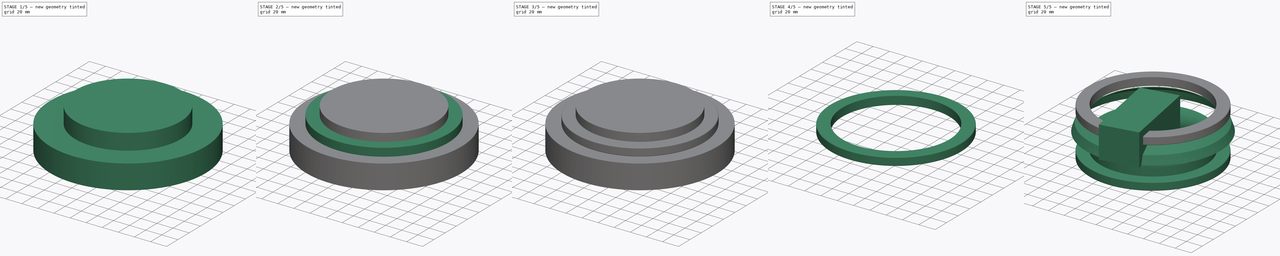
[diagram: build sequence overview — one tinted view per stage of 5, left to right]
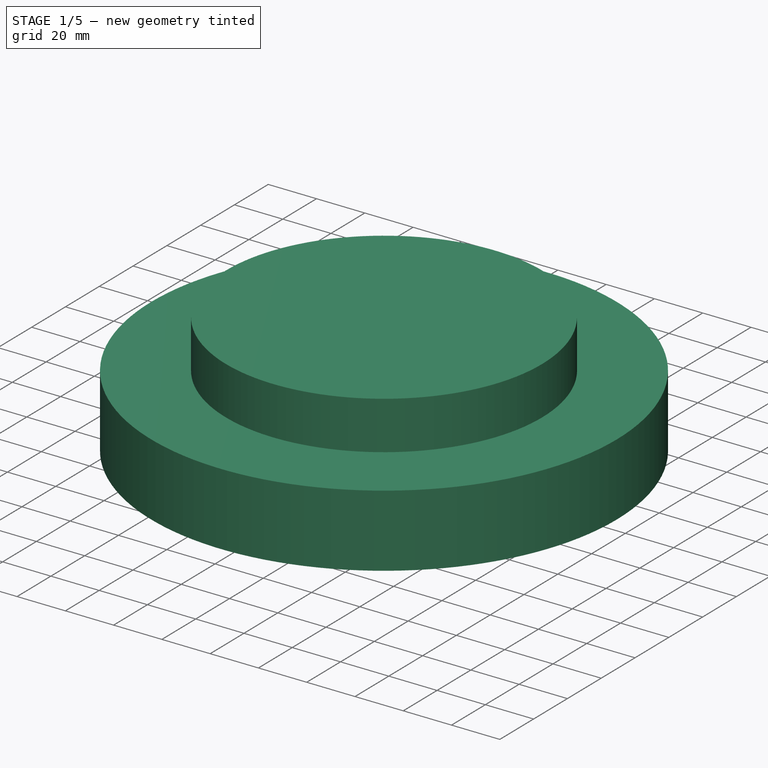
[diagram: stage 1 of 5 — iso view after this stage's code; geometry added in this stage tinted green]
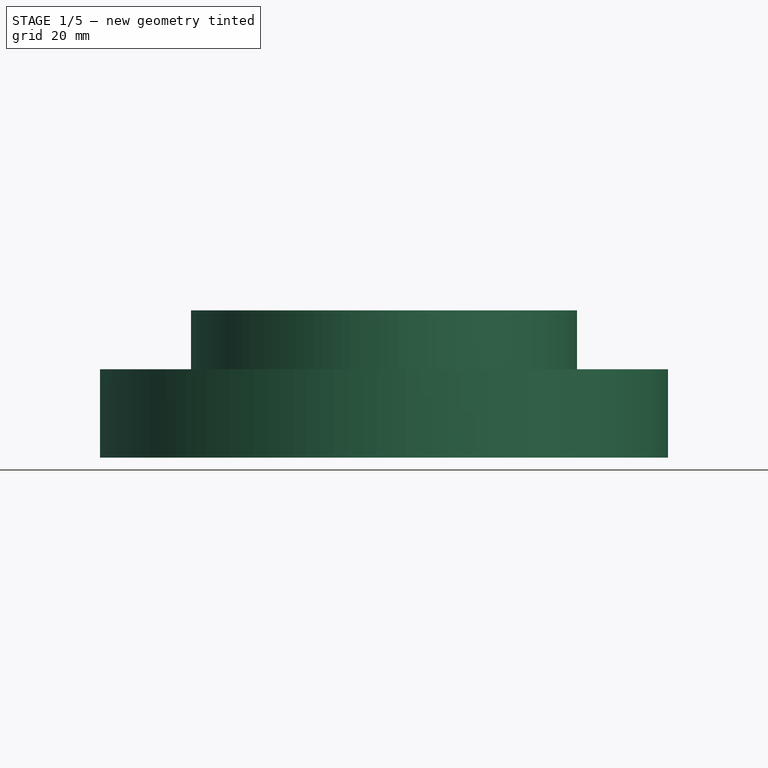
[diagram: stage 1 of 5 — front view after this stage's code; geometry added in this stage tinted green]
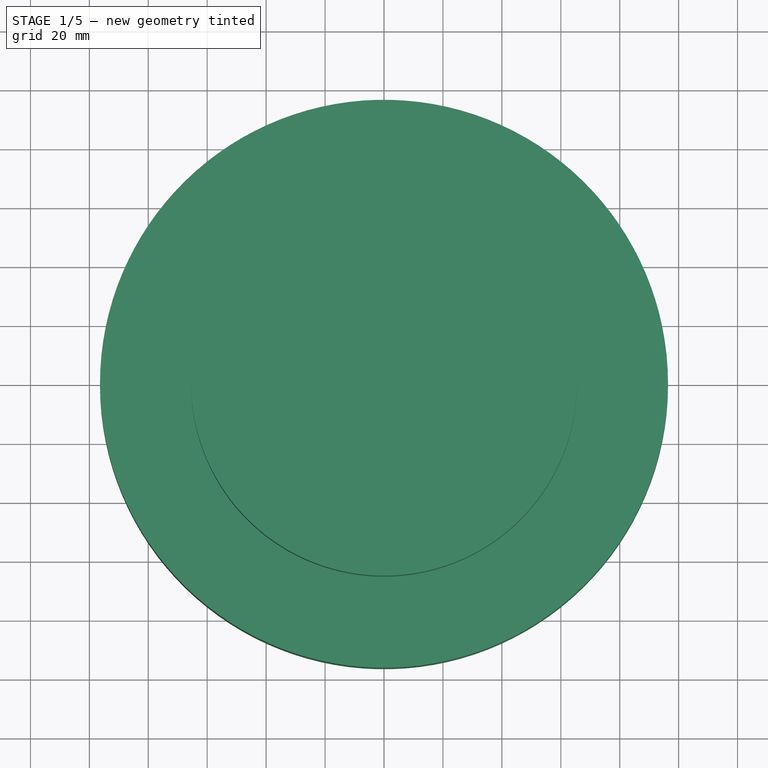
[diagram: stage 1 of 5 — top view after this stage's code; geometry added in this stage tinted green]
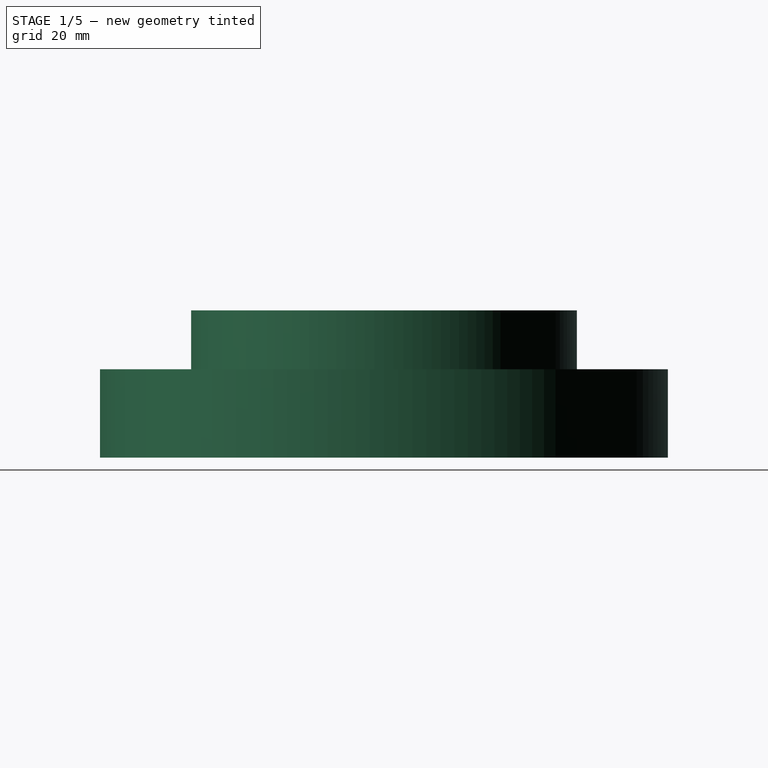
[diagram: stage 1 of 5 — right view after this stage's code; geometry added in this stage tinted green]
FCSTD DOCUMENT  (FreeCAD 0.20R27319 (Git))
Label: Hinterrad
License: All rights reserved
LicenseURL: http://en.wikipedia.org/wiki/All_rights_reserved
objects: Sketcher::SketchObject×6, PartDesign::Body×5, Part::FeaturePython×4, PartDesign::Revolution×3, PartDesign::Pad×3, Part::MultiFuse×2, Part::Fillet×2, Part::Box×1, App::DocumentObjectGroup×1
note: 31 computed .brp shape members not serialized (recipe doc carries the construction recipe); baked Part::Feature solids carry a one-line shape summary decoded from their .brp

FEATURE [PartDesign::Body] Body001  label="Nabe"
  Group = -> [Revolution001]
  Origin = -> Origin001
  Tip = -> Revolution001
FEATURE [Sketcher::SketchObject] Sketch003
  AttachmentOffset = pos=(0,0,14) rot=(0,0,1;0rad)
  FullyConstrained = true
  MapMode = 5
  Placement = pos=(0,-14,-3.1e-15) rot=(1,0,0;1.5708rad)
  Support = -> [XZ_Plane003]
  sketch-geometry (6):
    g0: ArcOfCircle CenterX=0 CenterY=0 CenterZ=0 NormalX=0 NormalY=0 NormalZ=1 AngleXU=0 Radius=8 StartAngle=5.09679 EndAngle=10.6112
    g1: LineSegment StartX=1.5 StartY=-8.9162 StartZ=0 EndX=0.5 EndY=-15.5 EndZ=0
    g2: LineSegment StartX=0.5 StartY=-15.5 StartZ=0 EndX=-0.5 EndY=-15.5 EndZ=0
    g3: LineSegment StartX=-0.5 StartY=-15.5 StartZ=0 EndX=-1.5 EndY=-8.9162 EndZ=0
    g4: LineSegment StartX=-3 StartY=-7.4162 StartZ=0 EndX=-1.5 EndY=-8.9162 EndZ=0
    g5: LineSegment StartX=1.5 StartY=-8.9162 StartZ=0 EndX=3 EndY=-7.4162 EndZ=0
  constraints (16):
    c: Coincident(g0,g-1)
    c: Coincident(g1,g2)
    c: Coincident(g2,g3)
    c: Symmetric(g0,g0,g-2)
    c: Symmetric(g2,g1,g-2)
    c: DistanceY(g1) = -15.5
    c: DistanceX(g2,g2) = 1
    c: Diameter(g0) = 16
    c: Symmetric(g1,g3,g-2)
    c: DistanceX(g3,g1) = 3
    c: Coincident(g4,g0)
    c: Coincident(g4,g3)
    c: Coincident(g5,g1)
    c: Coincident(g5,g0)
    c: DistanceX(g0,g0) = 6
    c: Angle(g5) = 0.785398
FEATURE [PartDesign::Pad] Pad
  Direction = (0,-1,-2e-16)
  Length = 51
  Length2 = 100
  Placement = pos=(0,0,0) rot=(1,0,0;1.5708rad)
  Profile = -> Sketch003
  Type = 0
FEATURE [Sketcher::SketchObject] Sketch005
  AttachmentOffset = pos=(0,0,5.5) rot=(0,0,1;0rad)
  FullyConstrained = false
  MapMode = 5
  Placement = pos=(0,0,5.5) rot=(0,0,1;0rad)
  Support = -> [XY_Plane004]
  sketch-geometry (1):
    g0: Circle CenterX=0 CenterY=0 CenterZ=0 NormalX=0 NormalY=0 NormalZ=1 AngleXU=0 Radius=96.3947
  constraints (1):
    c: Coincident(g0,g-1)
FEATURE [PartDesign::Pad] Pad001
  Direction = (0,0,1)
  Length = 30
  Length2 = 10
  Profile = -> Sketch005
  ReferenceAxis = -> Sketch005 [N_Axis]
  Reversed = true
  Type = 0
FEATURE [Sketcher::SketchObject] Sketch006
  FullyConstrained = true
  MapMode = 5
  Placement = pos=(0,0,5.5) rot=(0,0,1;0rad)
  Support = -> [Pad001]
  sketch-geometry (1):
    g0: Circle CenterX=0 CenterY=0 CenterZ=0 NormalX=0 NormalY=0 NormalZ=1 AngleXU=0 Radius=65.5
  constraints (2):
    c: Coincident(g0,g-1)
    c: Diameter(g0) = 131
FEATURE [PartDesign::Pad] Pad002
  BaseFeature = -> Pad001
  Direction = (0,0,1)
  Length = 20
  Length2 = 10
  Profile = -> Sketch006
  ReferenceAxis = -> Sketch006 [N_Axis]
  Type = 0
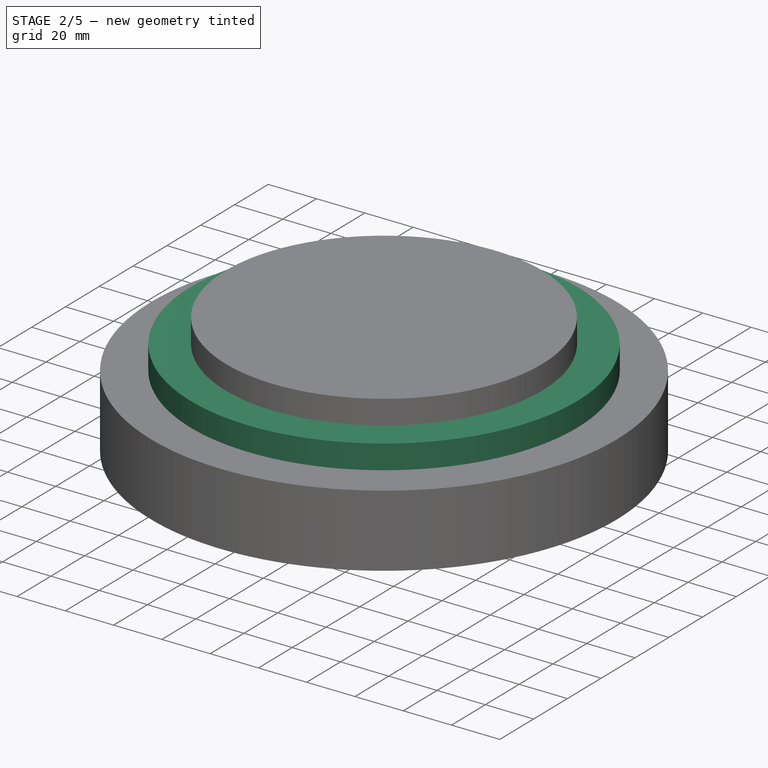
[diagram: stage 2 of 5 — iso view after this stage's code; geometry added in this stage tinted green]
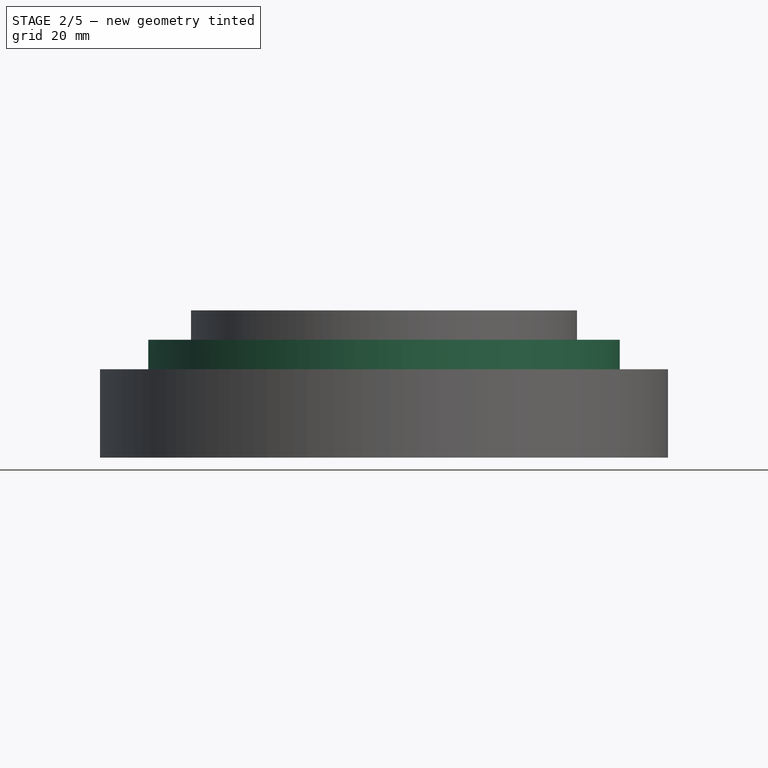
[diagram: stage 2 of 5 — front view after this stage's code; geometry added in this stage tinted green]
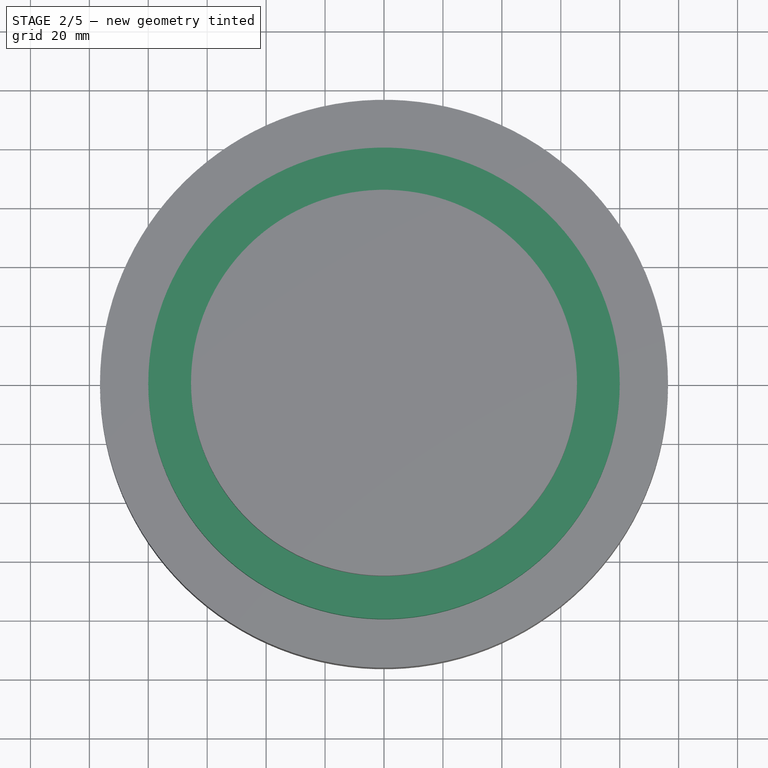
[diagram: stage 2 of 5 — top view after this stage's code; geometry added in this stage tinted green]
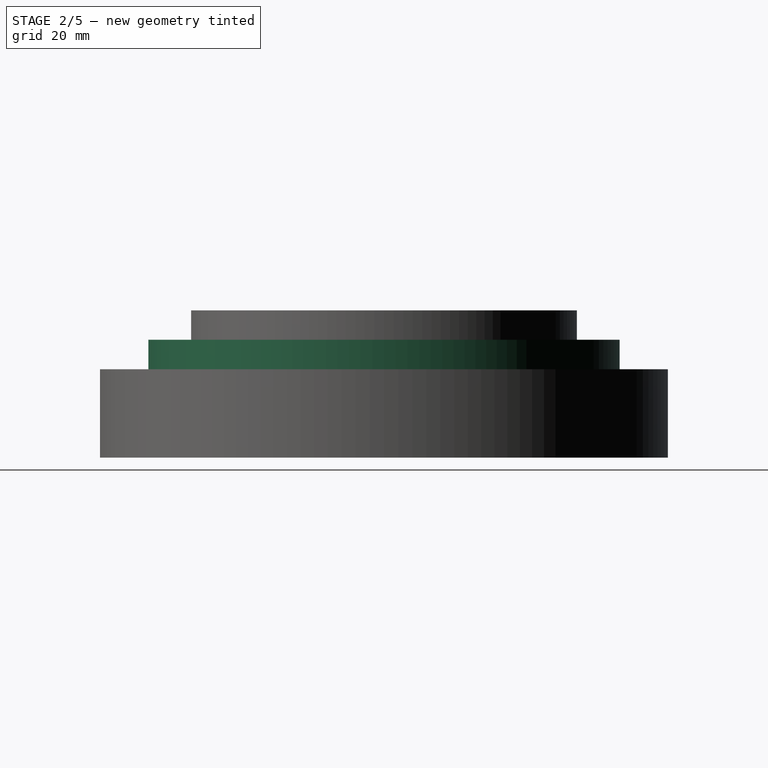
[diagram: stage 2 of 5 — right view after this stage's code; geometry added in this stage tinted green]
FEATURE [Sketcher::SketchObject] Sketch
  FullyConstrained = true
  MapMode = 5
  Placement = pos=(0,0,0) rot=(1,0,0;1.5708rad)
  Support = -> [XZ_Plane]
  sketch-geometry (9):
    g0: LineSegment StartX=-66 StartY=5.5 StartZ=0 EndX=-80 EndY=5.5 EndZ=0
    g1: LineSegment StartX=-80 StartY=5.5 StartZ=0 EndX=-80 EndY=15.5 EndZ=0
    g2: LineSegment StartX=-80 StartY=15.5 StartZ=0 EndX=-65 EndY=15.5 EndZ=0
    g3: LineSegment StartX=-65 StartY=-15.5 StartZ=0 EndX=-80 EndY=-15.5 EndZ=0
    g4: LineSegment StartX=-80 StartY=-15.5 StartZ=0 EndX=-80 EndY=-5.5 EndZ=0
    g5: LineSegment StartX=-80 StartY=-5.5 StartZ=0 EndX=-66 EndY=-5.5 EndZ=0
    g6: LineSegment StartX=-66 StartY=-5.5 StartZ=0 EndX=-66 EndY=5.5 EndZ=0
    g7: ArcOfCircle CenterX=-70 CenterY=-6e-16 CenterZ=0 NormalX=0 NormalY=0 NormalZ=1 AngleXU=0 Radius=16.2865 StartAngle=5.02443 EndAngle=7.54194
    g8: GeomPoint X=80 Y=15.5 Z=0
  constraints (24):
    c: Horizontal(g0)
    c: Coincident(g0,g1)
    c: Vertical(g1)
    c: Coincident(g1,g2)
    c: Horizontal(g2)
    c: Horizontal(g3)
    c: Coincident(g3,g4)
    c: Vertical(g4)
    c: Coincident(g4,g5)
    c: Horizontal(g5)
    c: Coincident(g5,g6)
    c: Coincident(g6,g0)
    c: Symmetric(g2,g3,g-1)
    c: Symmetric(g0,g5,g-1)
    c: PointOnObject(g4,g1)
    c: Coincident(g7,g2)
    c: Coincident(g7,g3)
    c: DistanceX(g7,g3) = 5
    c: DistanceY(g3,g1) = 31
    c: DistanceY(g4,g0) = 11
    c: DistanceX(g4,g5) = 14
    c: DistanceX(g2,g2) = 15
    c: Symmetric(g8,g1,g-2)
    c: DistanceX(g1,g8) = 160
FEATURE [PartDesign::Revolution] Revolution
  Angle = 360
  Axis = (0,-2e-16,1)
  Base = (0,0,0)
  Placement = pos=(0,0,0) rot=(1,0,0;1.5708rad)
  Profile = -> Sketch
  ReferenceAxis = -> Sketch [V_Axis]
FEATURE [PartDesign::Body] Body002  label="Speiche"
  Group = -> [Sketch003,Pad]
  Origin = -> Origin002
  Tip = -> Pad
FEATURE [Part::FeaturePython] Array  label="Speichen"  # Draft array (typed FeaturePython)
  AlwaysSyncPlacement = false
  Angle = 360
  ArrayType = 1
  Axis = (0,0,1)
  Base = -> Body002
  Center = (0,0,0)
  Count = 5
  ExpandArray = false
  Fuse = false
  IntervalAxis = (0,0,0)
  IntervalX = (50,0,0)
  IntervalY = (0,50,0)
  IntervalZ = (0,0,50)
  NumberCircles = 3
  NumberPolar = 5
  NumberX = 2
  NumberY = 2
  NumberZ = 1
  PlacementList = 5 placements: [(0,0,0),(0,0,0),(0,0,0),(0,0,0),(0,0,0)]
  RadialDistance = 50
  ScaleList = (5) [(1,1,1),(1,1,1),(1,1,1),(1,1,1),(1,1,1)]
  Symmetry = 1
  TangentialDistance = 25
FEATURE [Part::MultiFuse] Fusion
  Shapes = -> [Body,Array]
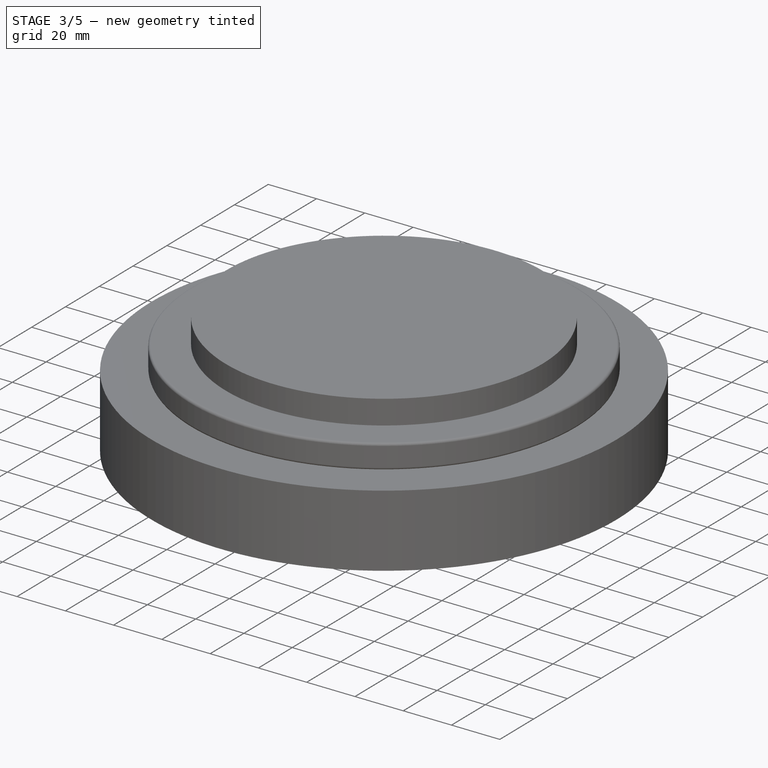
[diagram: stage 3 of 5 — iso view after this stage's code; geometry added in this stage tinted green]
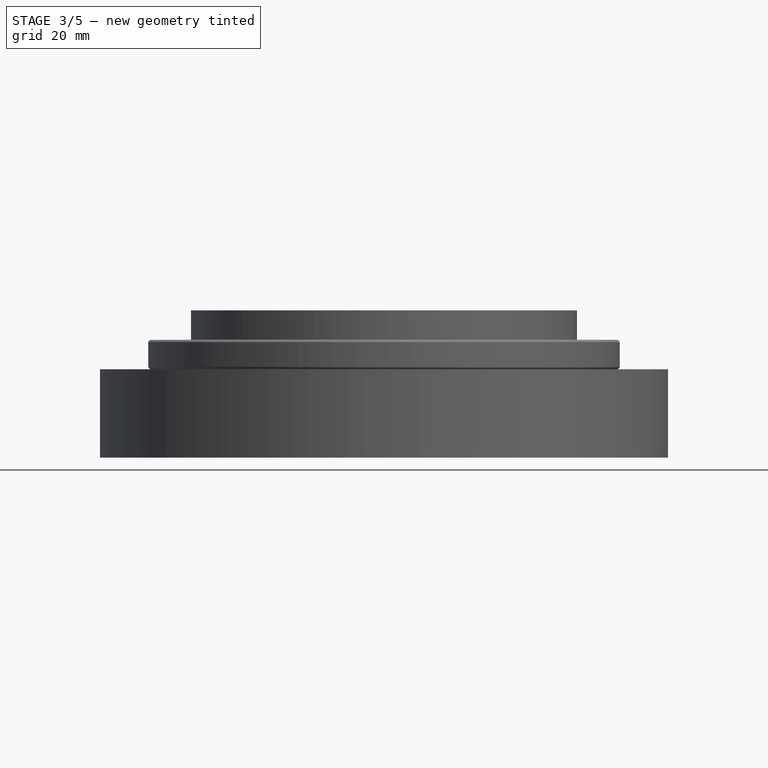
[diagram: stage 3 of 5 — front view after this stage's code; geometry added in this stage tinted green]
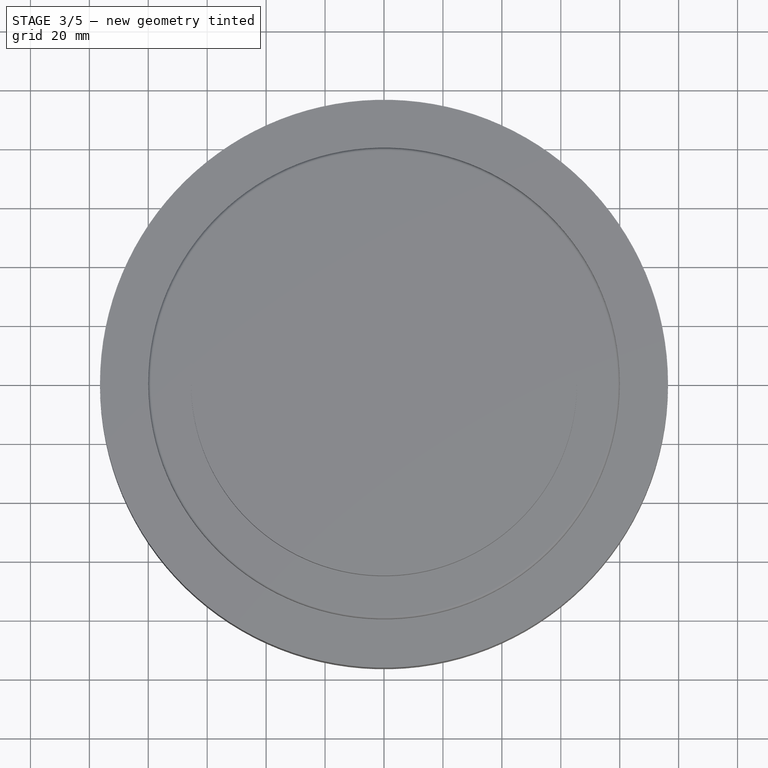
[diagram: stage 3 of 5 — top view after this stage's code; geometry added in this stage tinted green]
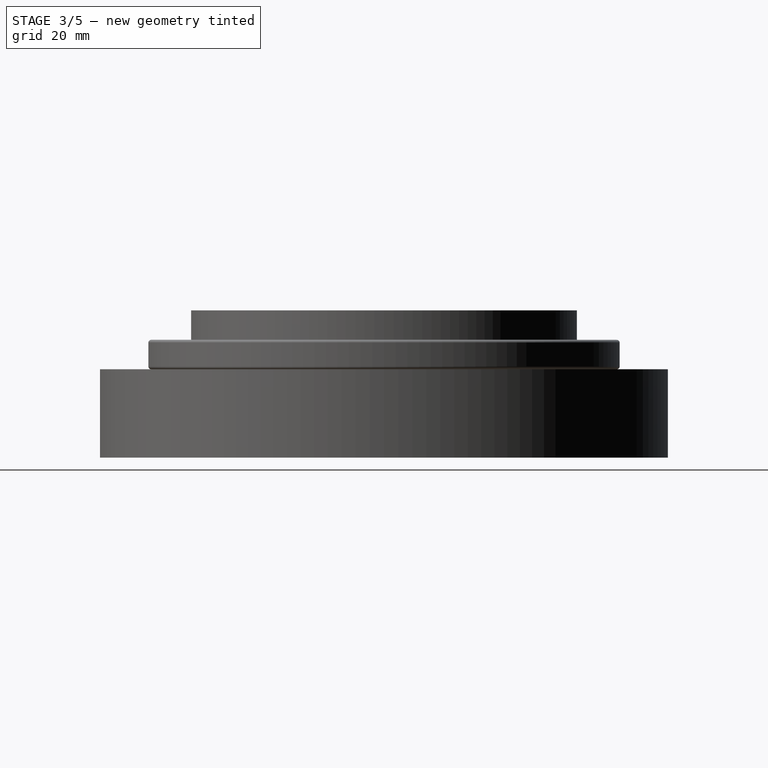
[diagram: stage 3 of 5 — right view after this stage's code; geometry added in this stage tinted green]
FEATURE [PartDesign::Body] Body  label="Felge"
  Group = -> [Sketch,Revolution]
  Origin = -> Origin
  Tip = -> Revolution
FEATURE [Sketcher::SketchObject] Sketch002
  ExternalGeometry = -> [Sketch]
  FullyConstrained = true
  MapMode = 5
  Placement = pos=(0,0,0) rot=(1,0,0;1.5708rad)
  Support = -> [XZ_Plane002]
  sketch-geometry (14):
    g0: LineSegment StartX=-11.2 StartY=-15.5 StartZ=0 EndX=-14.2 EndY=-15.5 EndZ=0
    g1: LineSegment StartX=-14.2 StartY=15.5 StartZ=0 EndX=-11.2 EndY=15.5 EndZ=0
    g2: LineSegment StartX=-11.2 StartY=15.5 StartZ=0 EndX=-11.2 EndY=8.5 EndZ=0
    g3: LineSegment StartX=-11.2 StartY=8.5 StartZ=0 EndX=-9.9 EndY=8.5 EndZ=0
    g4: LineSegment StartX=-9.9 StartY=8.5 StartZ=0 EndX=-9.9 EndY=6.5 EndZ=0
    g5: LineSegment StartX=-9.9 StartY=6.5 StartZ=0 EndX=-13.9 EndY=2.5 EndZ=0
    g6: LineSegment StartX=-13.9 StartY=2.5 StartZ=0 EndX=-13.9 EndY=-2.5 EndZ=0
    g7: LineSegment StartX=-13.9 StartY=-2.5 StartZ=0 EndX=-9.9 EndY=-6.5 EndZ=0
    g8: LineSegment StartX=-9.9 StartY=-6.5 StartZ=0 EndX=-9.9 EndY=-8.5 EndZ=0
    g9: LineSegment StartX=-9.9 StartY=-8.5 StartZ=0 EndX=-11.2 EndY=-8.5 EndZ=0
    g10: LineSegment StartX=-11.2 StartY=-8.5 StartZ=0 EndX=-11.2 EndY=-15.5 EndZ=0
    g11: ArcOfCircle CenterX=-6.2 CenterY=2e-16 CenterZ=0 NormalX=0 NormalY=0 NormalZ=1 AngleXU=0 Radius=17.4428 StartAngle=2.04726 EndAngle=4.23592
    g12: GeomPoint X=11.2 Y=-15.5 Z=0
    g13: GeomPoint X=9.9 Y=-8.5 Z=0
  constraints (38):
    c: Horizontal(g0)
    c: Horizontal(g1)
    c: Coincident(g1,g2)
    c: Coincident(g2,g3)
    c: Horizontal(g3)
    c: Coincident(g3,g4)
    c: Vertical(g4)
    c: Coincident(g4,g5)
    c: Coincident(g5,g6)
    c: Coincident(g6,g7)
    c: Coincident(g7,g8)
    c: Vertical(g8)
    c: Coincident(g8,g9)
    c: Horizontal(g9)
    c: Coincident(g9,g10)
    c: Coincident(g10,g0)
    c: Coincident(g11,g1)
    c: Coincident(g11,g0)
    c: Vertical(g2)
    c: Vertical(g10)
    c: Equal(g10,g2)
    c: Equal(g3,g9)
    c: Equal(g8,g4)
    c: Equal(g1,g0)
    c: Symmetric(g0,g1,g-1)
    c: Symmetric(g6,g5,g-1)
    c: Angle(g7) = -0.785398
    c: DistanceX(g0,g11) = 8
    c: DistanceY(g10,g10) = 7
    c: Symmetric(g8,g13,g-2)
    c: Symmetric(g12,g0,g-2)
    c: DistanceX(g0,g12) = 22.4
    c: DistanceX(g8,g13) = 19.8
    c: DistanceX(g9,g9) = 1.3
    c: DistanceY(g4,g4) = 2
    c: DistanceY(g6,g6) = 5
    c: DistanceX(g1,g1) = 3
    c: PointOnObject(g-3,g0)
FEATURE [PartDesign::Revolution] Revolution001
  Angle = 360
  Axis = (0,-2e-16,1)
  Base = (0,0,0)
  Placement = pos=(0,0,0) rot=(1,0,0;1.5708rad)
  Profile = -> Sketch002
  ReferenceAxis = -> Sketch002 [V_Axis]
FEATURE [Part::Fillet] Fillet
  Base = -> Fusion
  Edges = 9 edges: [Edge1 r=1,Edge28 r=1,Edge35 r=3,Edge41 r=3,Edge47 r=3,Edge53 r=3,Edge59 r=3,Edge73 r=1,Edge136 r=1]
FEATURE [Part::MultiFuse] Fusion001
  Shapes = -> [Fillet,Body001]
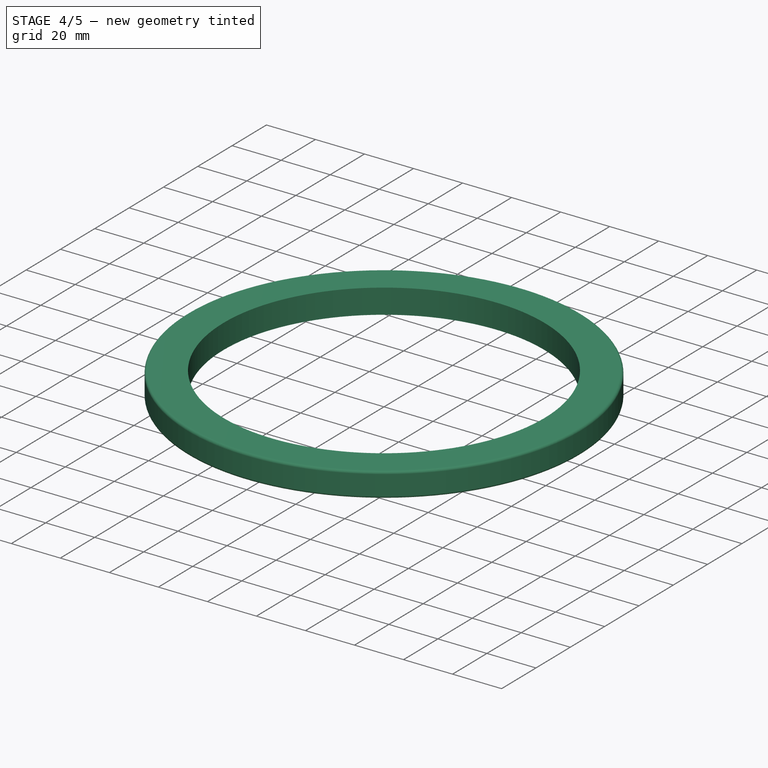
[diagram: stage 4 of 5 — iso view after this stage's code; geometry added in this stage tinted green]
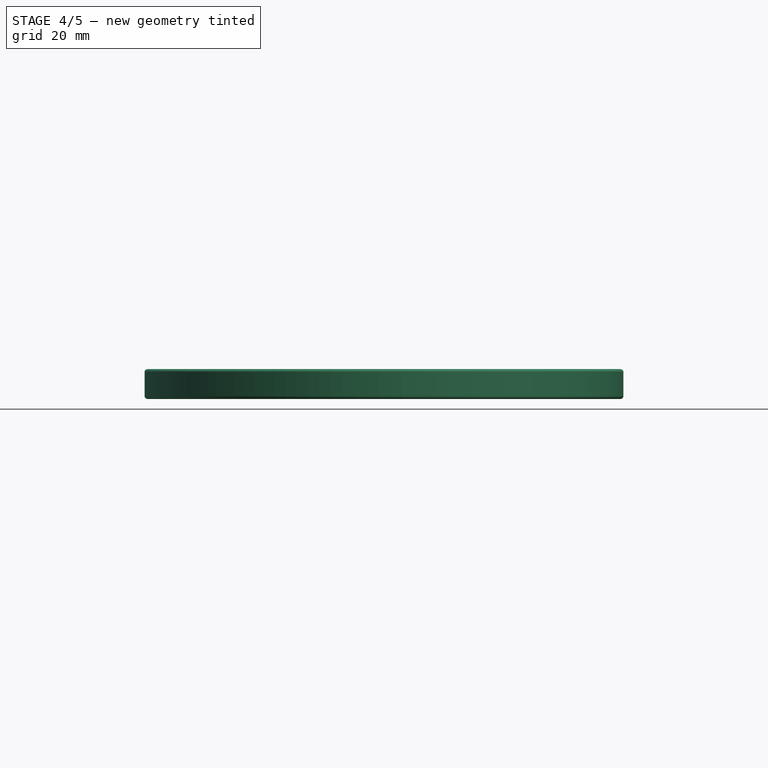
[diagram: stage 4 of 5 — front view after this stage's code; geometry added in this stage tinted green]
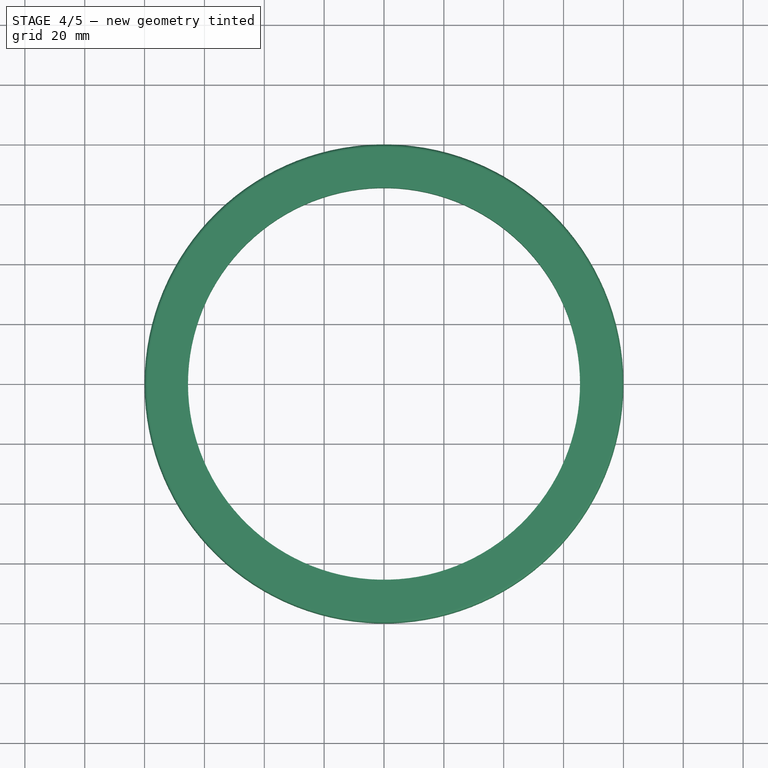
[diagram: stage 4 of 5 — top view after this stage's code; geometry added in this stage tinted green]
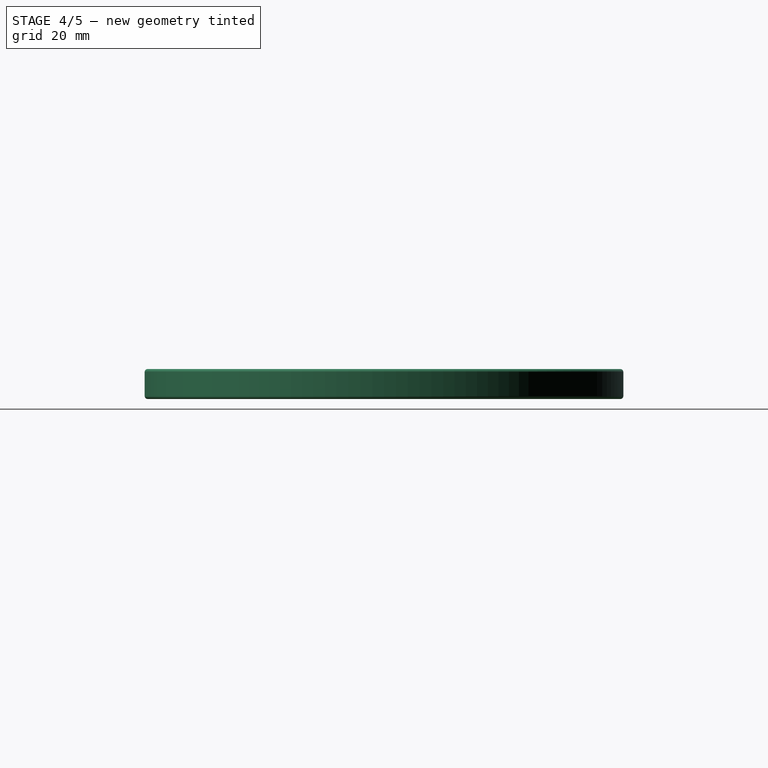
[diagram: stage 4 of 5 — right view after this stage's code; geometry added in this stage tinted green]
FEATURE [Part::Fillet] Fillet001  label="160mm"
  Base = -> Fusion001
  Edges = 5 edges r=4: [Edge4,Edge11,Edge20,Edge28,Edge36]
FEATURE [PartDesign::Body] Body004  label="splitter"
  Group = -> [Sketch005,Pad001,Sketch006,Pad002]
  Origin = -> Origin004
  Tip = -> Pad002
FEATURE [Part::FeaturePython] Slice  # WARN: FeaturePython — macro-defined, semantics opaque (R4)
  Base = -> Fillet001
  Mode = 1
  Tolerance = 0
  Tools = -> [Body004]
FEATURE [Part::FeaturePython] Slice_child1  label="160mm-second-rim"  # WARN: FeaturePython — macro-defined, semantics opaque (R4)
  Base = -> Slice
  FilterType = 1
  Invert = false
  OverrideMaxVal = 0
  WindowFrom = 80
  WindowTo = 100
  items = 1
FEATURE [App::DocumentObjectGroup] GrExplode_Slice  label="160mm-splitted"
  Group = -> [Slice_child0,Slice_child1]
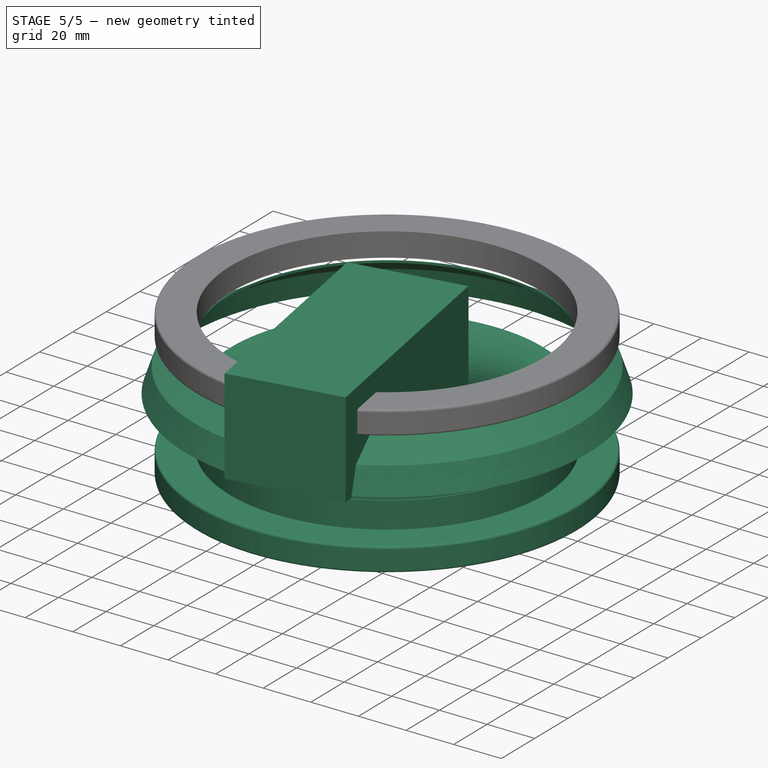
[diagram: stage 5 of 5 — iso view after this stage's code; geometry added in this stage tinted green]
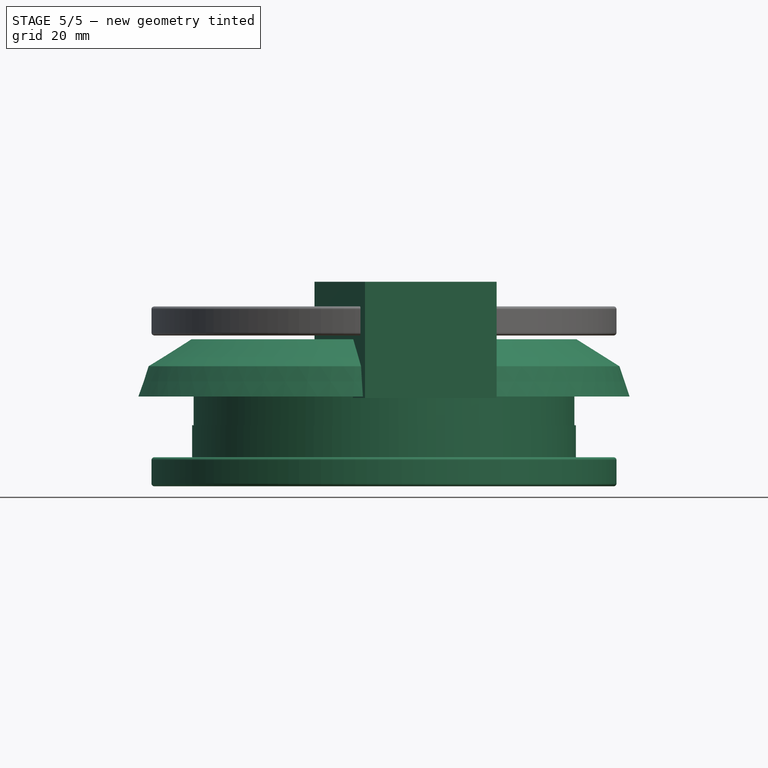
[diagram: stage 5 of 5 — front view after this stage's code; geometry added in this stage tinted green]
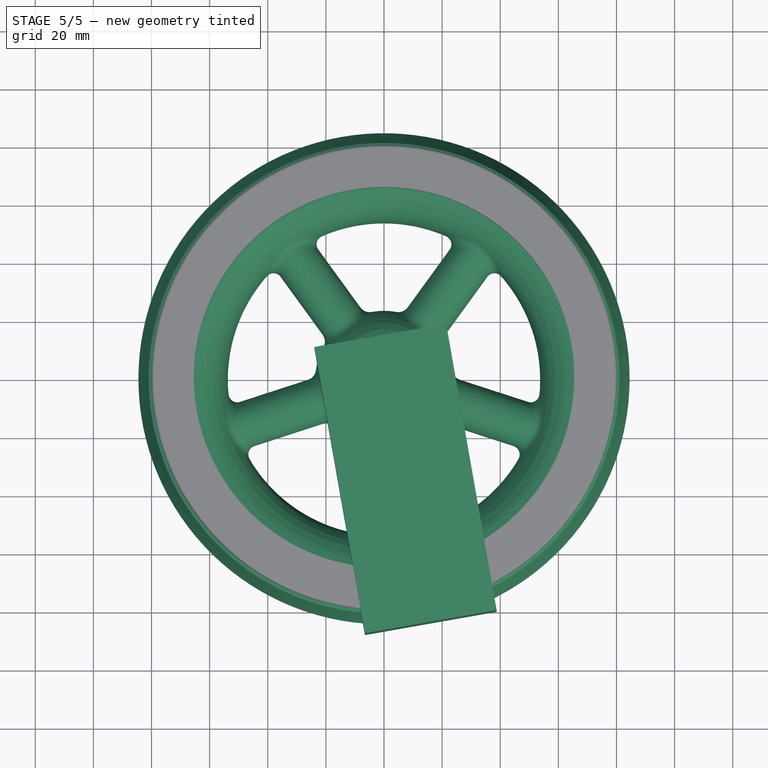
[diagram: stage 5 of 5 — top view after this stage's code; geometry added in this stage tinted green]
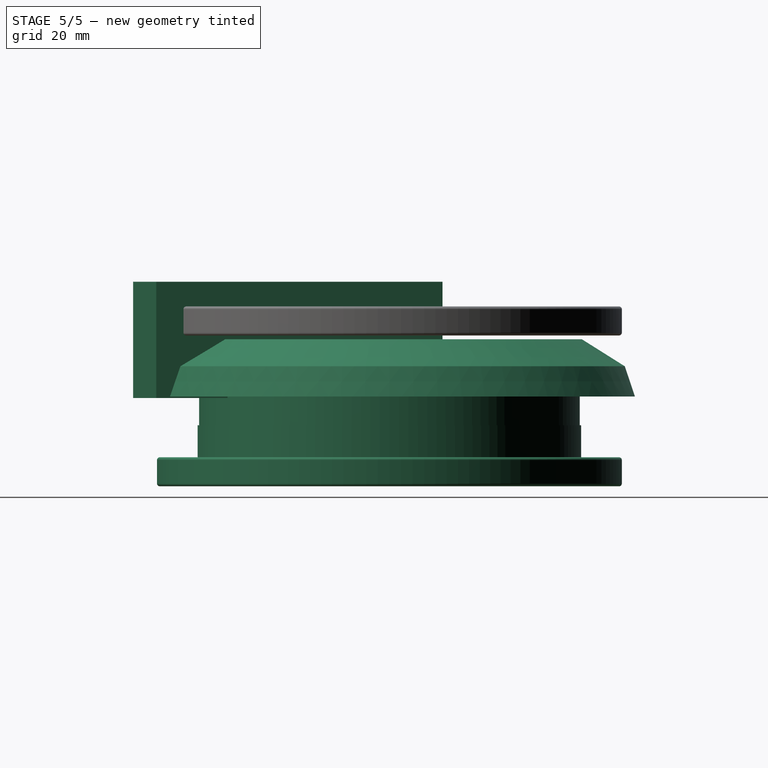
[diagram: stage 5 of 5 — right view after this stage's code; geometry added in this stage tinted green]
FEATURE [Sketcher::SketchObject] Sketch004
  FullyConstrained = false
  MapMode = 5
  Placement = pos=(0,0,0) rot=(1,0,0;1.5708rad)
  Support = -> [XZ_Plane004]
  sketch-geometry (6):
    g0: LineSegment StartX=83.5009 StartY=-15.5 StartZ=0 EndX=84.5009 EndY=-15.5 EndZ=0
    g1: LineSegment StartX=66.2291 StartY=4.2 StartZ=0 EndX=66.2291 EndY=3.2 EndZ=0
    g2: LineSegment StartX=66.2291 StartY=3.2 StartZ=0 EndX=80.1595 EndY=-5.56098 EndZ=0
    g3: LineSegment StartX=80.1595 StartY=-5.56098 StartZ=0 EndX=83.5009 EndY=-15.5 EndZ=0
    g4: LineSegment StartX=84.5009 StartY=-15.5 StartZ=0 EndX=81.0013 EndY=-5.09039 EndZ=0
    g5: LineSegment StartX=81.0013 StartY=-5.09039 StartZ=0 EndX=66.2291 EndY=4.2 EndZ=0
  constraints (14):
    c: Horizontal(g0)
    c: Coincident(g0,g4)
    c: DistanceY(g0) = -15.5
    c: Coincident(g5,g1)
    c: Vertical(g1)
    c: Coincident(g1,g2)
    c: Coincident(g2,g3)
    c: Coincident(g3,g0)
    c: DistanceX(g0,g0) = 1
    c: DistanceY(g5) = 4.2
    c: Parallel(g2,g5)
    c: Parallel(g4,g3)
    c: Equal(g0,g1)
    c: Coincident(g4,g5)
FEATURE [PartDesign::Revolution] Revolution002
  Angle = 360
  Axis = (0,-2e-16,1)
  Base = (0,0,0)
  Placement = pos=(0,0,0) rot=(1,0,0;1.5708rad)
  Profile = -> Sketch004
  ReferenceAxis = -> Sketch004 [V_Axis]
  Reversed = true
FEATURE [PartDesign::Body] Body003  label="skirt"
  Group = -> [Sketch004,Revolution002]
  Origin = -> Origin003
  Tip = -> Revolution002
FEATURE [Part::Box] Box  label="Cube"
  AttacherType = Attacher::AttachEngine3D
  Height = 40
  Length = 100
  Placement = pos=(-23.9208,10.2783,-16) rot=(0,0,-1;1.39626rad)
  Width = 46
FEATURE [Part::FeaturePython] Slice_child0  label="160mm-wheel-one-rim"  # WARN: FeaturePython — macro-defined, semantics opaque (R4)
  Base = -> Slice
  FilterType = 1
  Invert = false
  OverrideMaxVal = 0
  Placement = pos=(0,0,-30.9) rot=(0,0,1;0rad)
  WindowFrom = 80
  WindowTo = 100
  items = 0
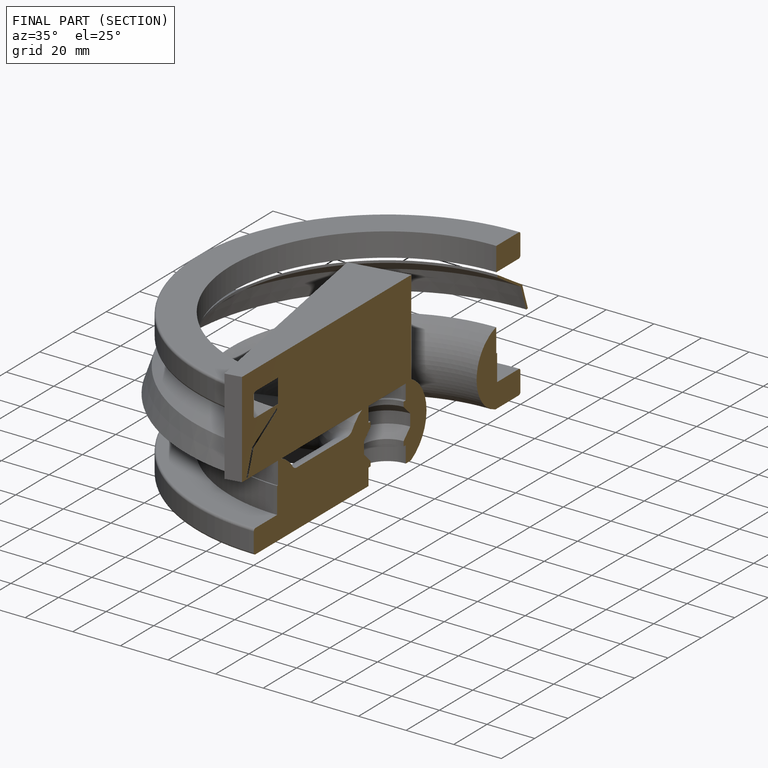
[diagram: finished part — half-section view (interior)]
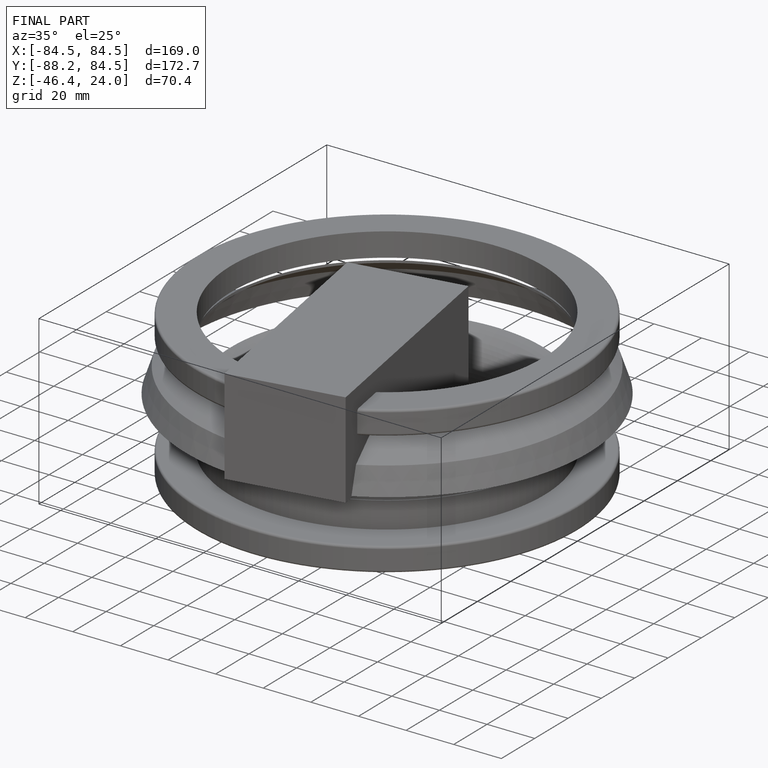
[diagram: finished part — iso view with bounding-box wireframe]
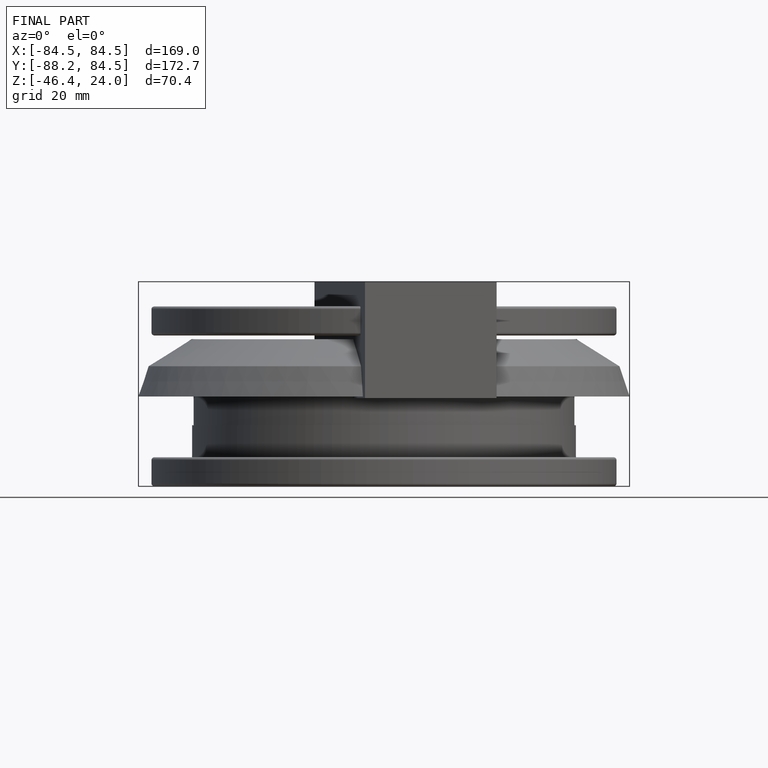
[diagram: finished part — front view with bounding-box wireframe]
